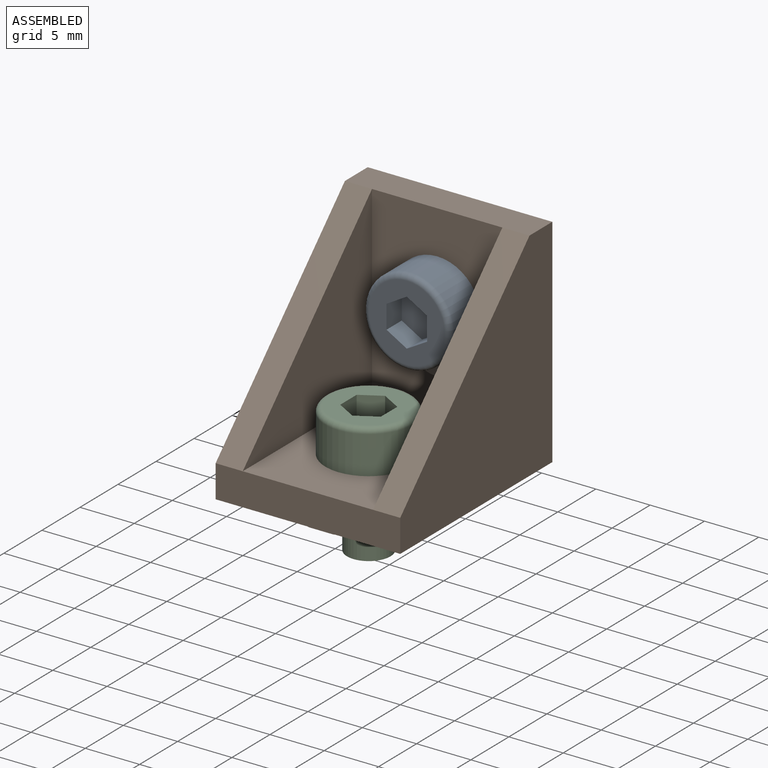
[diagram: assembled view]
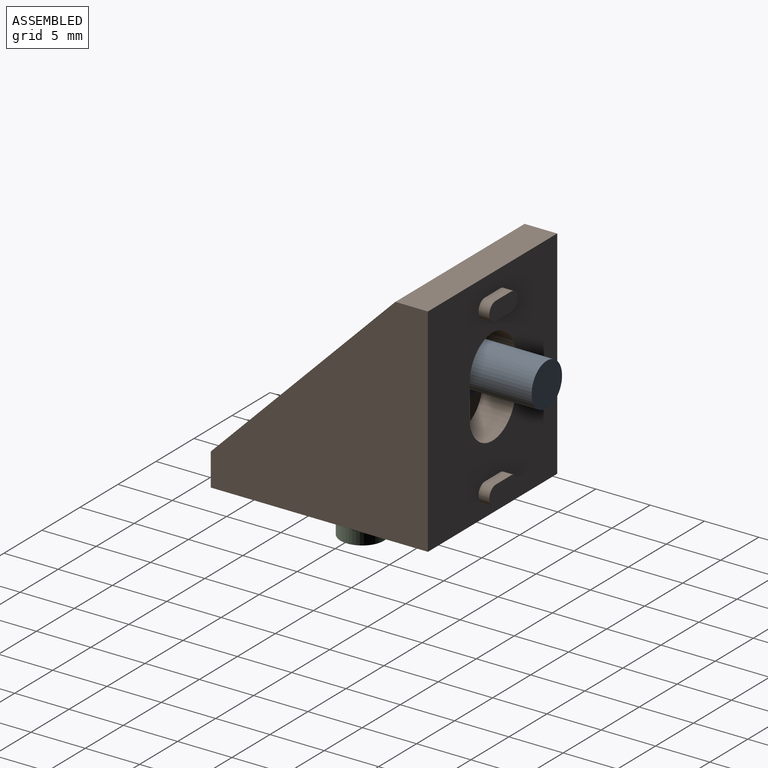
[diagram: assembled view, second angle]
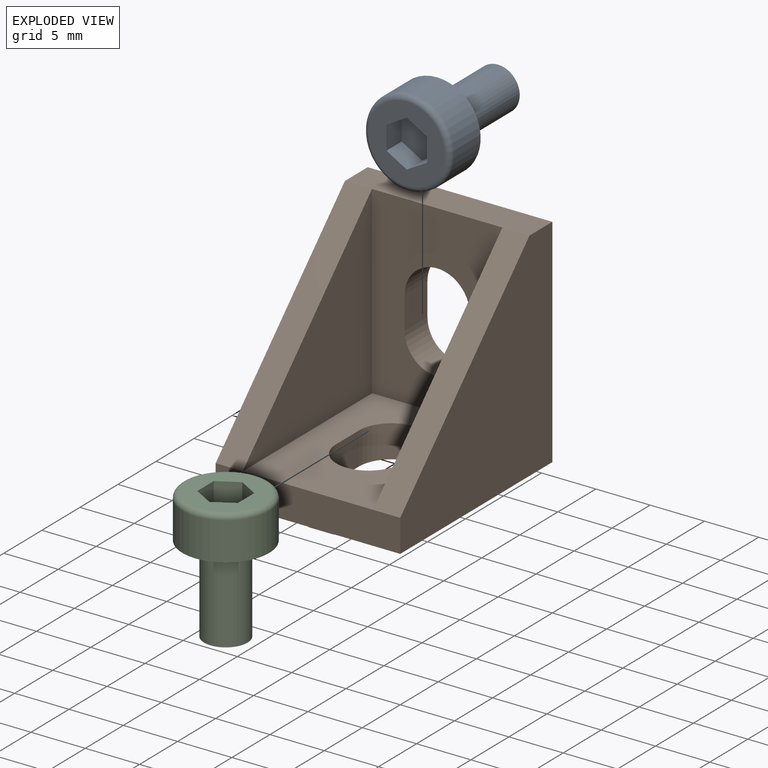
[diagram: exploded view]
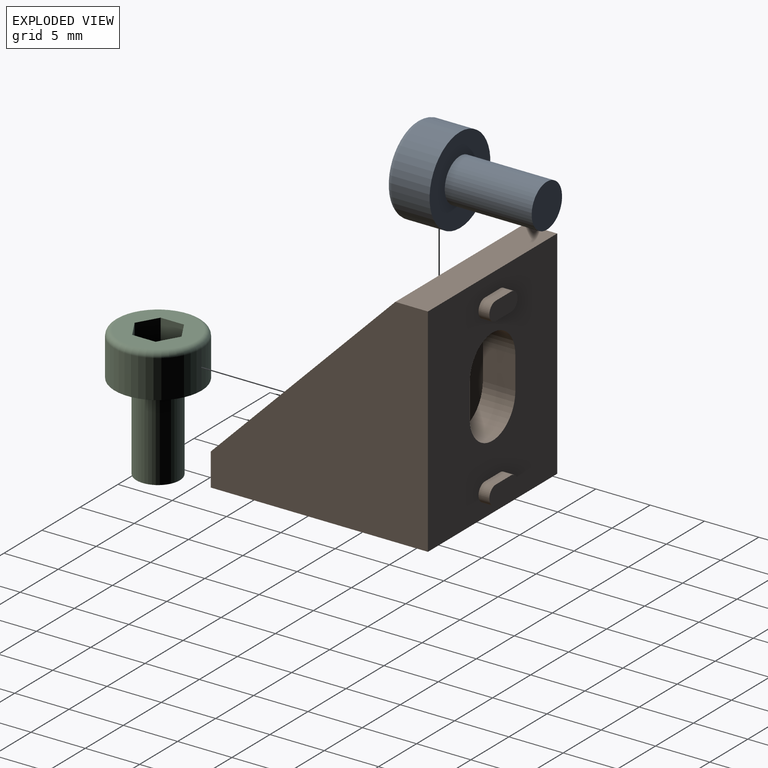
[diagram: exploded view, second angle]
ASSEMBLY  parts=3 mates=2
PART A: 13 faces, bbox 8.7x12x8.7 mm
  f0: cylinder r=2mm len=8mm, axis (0,-1,0), area 100.5mm2, adj f1,f4
  f1: plane 4x4mm, normal (0,1,0), area 12.6mm2, adj f0
  f2: cylinder r=4mm len=8mm, axis (0,1,0), area 88mm2, adj f4,f12
  f3: plane 7x7mm, normal (0,-1,0), area 26.4mm2, adj f5,f6,f7,f8,f9,f10,f12
  f4: plane 8x8mm, normal (0,1,0), area 37.7mm2, adj f0,f2
  f5: plane 2x1.87mm, normal (-0.5,0,0.87), area 4.3mm2, adj f3,f6,f10,f11
  f6: plane 2.16x2mm, normal (-1,0,0), area 4.3mm2, adj f3,f5,f7,f11
  f7: plane 2x1.87mm, normal (-0.5,0,-0.87), area 4.3mm2, adj f3,f6,f8,f11
  f8: plane 2x1.87mm, normal (0.5,0,-0.87), area 4.3mm2, adj f3,f7,f9,f11
  f9: plane 2.16x2mm, normal (1,0,0), area 4.3mm2, adj f3,f8,f10,f11
  f10: plane 2x1.87mm, normal (0.5,0,0.87), area 4.3mm2, adj f3,f5,f9,f11
  f11: plane 4.32x3.74mm, normal (0,-1,0), area 12.1mm2, adj f5,f6,f7,f8,f9,f10
  f12: torus R=3.5mm, axis (0,-1,0), area 18.8mm2, adj f2,f3
PART B: 40 faces, bbox 17x21x21 mm
  f0: plane 20x17mm, normal (0,1,0), area 282.4mm2, adj f2,f4,f7,f8,f26,f27,f28,f29
  f1: plane 17x12mm, normal (0,-1,0), area 157.7mm2, adj f4,f9,f10,f11,f26,f27,f28,f29
  f2: plane 20x17mm, normal (0,0,-1), area 282.4mm2, adj f0,f6,f7,f8,f12,f13,f14,f15
  f3: plane 17x17mm, normal (0,-0.71,0.71), area 60.1mm2, adj f4,f6,f7,f10
  f4: plane 17x3mm, normal (0,0,1), area 51mm2, adj f0,f1,f3,f5,f7,f8
  f5: plane 17x17mm, normal (0,-0.71,0.71), area 60.1mm2, adj f4,f6,f8,f9
  f6: plane 17x3mm, normal (0,-1,0), area 51mm2, adj f2,f3,f5,f7,f8,f11
  f7: plane 20x20mm, normal (1,0,0), area 255.5mm2, adj f0,f2,f3,f4,f6
  f8: plane 20x20mm, normal (-1,0,0), area 255.5mm2, adj f0,f2,f4,f5,f6
  f9: plane 17x17mm, normal (1,0,0), area 144.5mm2, adj f1,f5,f11
  f10: plane 17x17mm, normal (-1,0,0), area 144.5mm2, adj f1,f3,f11
  f11: plane 17x12mm, normal (0,0,1), area 157.7mm2, adj f1,f6,f9,f10,f12,f13,f14,f15
  f12: cylinder r=3mm len=6mm, axis (0,0,1), area 28.3mm2, adj f2,f11,f13,f15
  f13: plane 3x3mm, normal (-1,0,0), area 9mm2, adj f2,f11,f12,f14
  f14: cylinder r=3mm len=6mm, axis (0,0,1), area 28.3mm2, adj f2,f11,f13,f15
  f15: plane 3x3mm, normal (1,0,0), area 9mm2, adj f2,f11,f12,f14
  f16: cylinder r=0.85mm len=1.7mm, axis (0,0,1), area 2.7mm2, adj f2,f17,f19,f20
  f17: plane 2x1mm, normal (0,-1,0), area 2mm2, adj f2,f16,f18,f20
  f18: cylinder r=0.85mm len=1.7mm, axis (0,0,1), area 2.7mm2, adj f2,f17,f19,f20
  f19: plane 2x1mm, normal (0,1,0), area 2mm2, adj f2,f16,f18,f20
  f20: plane 3.7x1.7mm, normal (0,0,-1), area 5.7mm2, adj f16,f17,f18,f19
  f21: cylinder r=0.85mm len=1.7mm, axis (0,0,1), area 2.7mm2, adj f2,f22,f24,f25
  f22: plane 2x1mm, normal (0,-1,0), area 2mm2, adj f2,f21,f23,f25
  f23: cylinder r=0.85mm len=1.7mm, axis (0,0,1), area 2.7mm2, adj f2,f22,f24,f25
  f24: plane 2x1mm, normal (0,1,0), area 2mm2, adj f2,f21,f23,f25
  f25: plane 3.7x1.7mm, normal (0,0,-1), area 5.7mm2, adj f21,f22,f23,f24
  f26: cylinder r=3mm len=6mm, axis (0,-1,0), area 28.3mm2, adj f0,f1,f27,f29
  f27: plane 3x3mm, normal (1,0,0), area 9mm2, adj f0,f1,f26,f28
  f28: cylinder r=3mm len=6mm, axis (0,-1,0), area 28.3mm2, adj f0,f1,f27,f29
  f29: plane 3x3mm, normal (-1,0,0), area 9mm2, adj f0,f1,f26,f28
  f30: cylinder r=0.85mm len=1.7mm, axis (0,-1,0), area 2.7mm2, adj f0,f31,f33,f34
  f31: plane 2x1mm, normal (0,0,-1), area 2mm2, adj f0,f30,f32,f34
  f32: cylinder r=0.85mm len=1.7mm, axis (0,-1,0), area 2.7mm2, adj f0,f31,f33,f34
  f33: plane 2x1mm, normal (0,0,1), area 2mm2, adj f0,f30,f32,f34
  f34: plane 3.7x1.7mm, normal (0,1,0), area 5.7mm2, adj f30,f31,f32,f33
  f35: cylinder r=0.85mm len=1.7mm, axis (0,-1,0), area 2.7mm2, adj f0,f36,f38,f39
  f36: plane 2x1mm, normal (0,0,-1), area 2mm2, adj f0,f35,f37,f39
  f37: cylinder r=0.85mm len=1.7mm, axis (0,-1,0), area 2.7mm2, adj f0,f36,f38,f39
  f38: plane 2x1mm, normal (0,0,1), area 2mm2, adj f0,f35,f37,f39
  f39: plane 3.7x1.7mm, normal (0,1,0), area 5.7mm2, adj f35,f36,f37,f38
PART C: same geometry as A
PLACE A t=(0,0,1.5)mm
PLACE B at identity
PLACE C rot(axis=(-1,0,0),90deg) t=(0,-22.5,0)mm
MATE fastened A.f0 <-> B.f28  axis (0,-1,0) through (0,-3,12)mm
MATE fastened C.f12 <-> B.f14  axis (0,0,-1) through (0,-12,3)mm
